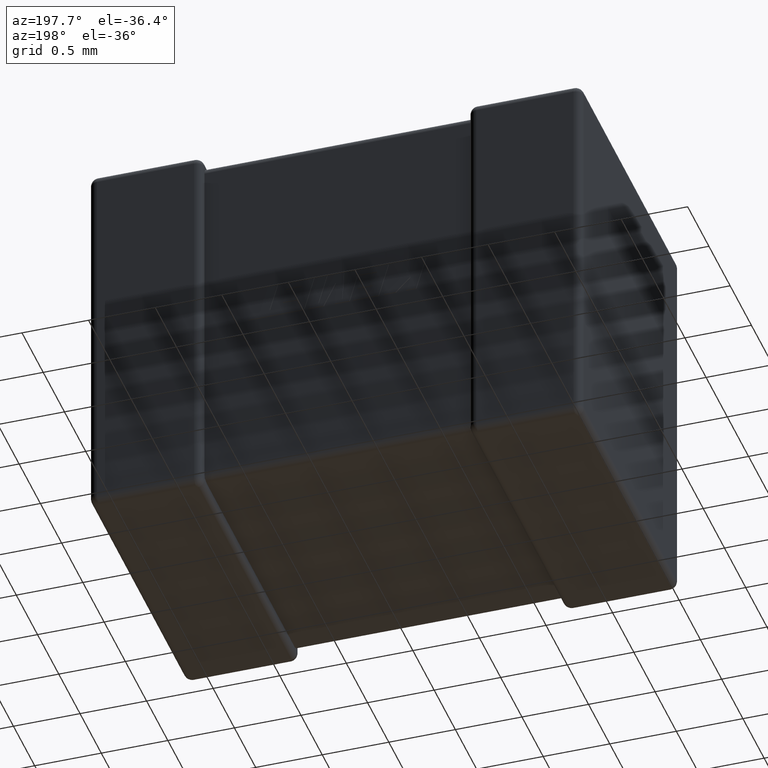
[diagram: clean part render]
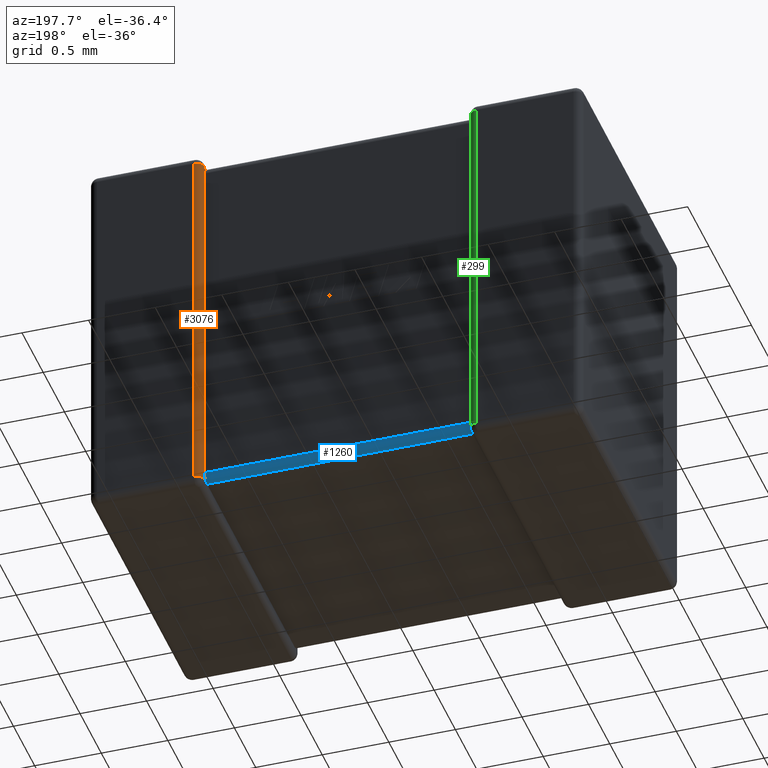
[diagram: same view with three faces highlighted in distinct colors, each labeled with its STEP entity id]
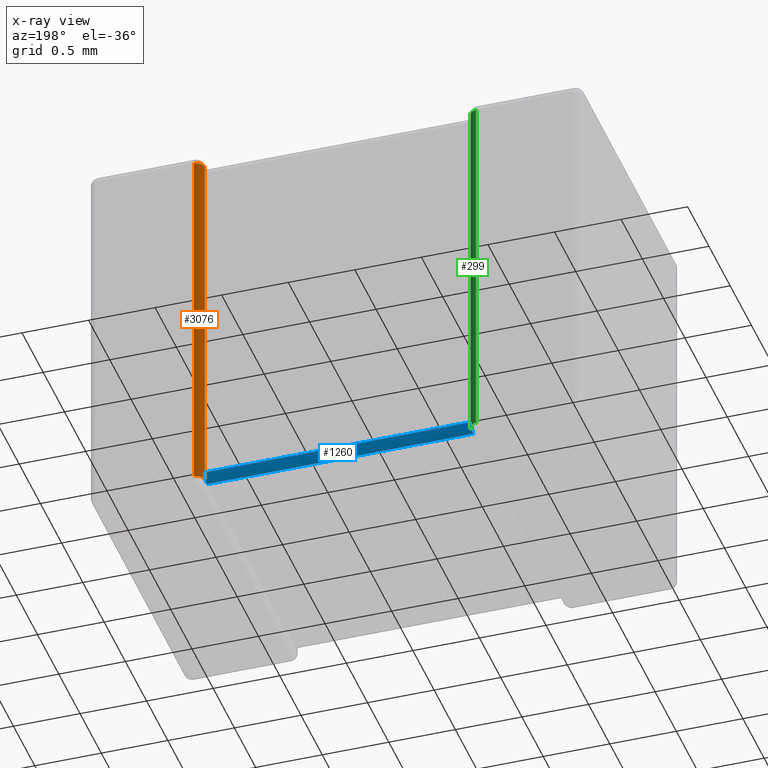
[diagram: x-ray of the same camera — body ghosted, the three highlighted faces saturated]
A machine part, auxiliary view with three faces highlighted in distinct colors.
The next image is the same camera in x-ray (body ghosted, the three faces saturated) — at least one of them is partly hidden behind the body in this view.
Their STEP definitions:

[orange] entity #3076 — the highlighted cylindrical surface (edge-blend (fillet) strip) has radius 0.0603 mm, axis along (-0, 0, 1).
#4 = CARTESIAN_POINT ( 'NONE',  ( 2.910319999999999600, 2.300000000000000300, -2.839680000000000000 ) ) ;
#22 = CARTESIAN_POINT ( 'NONE',  ( 2.851735349689732000, 2.225237134070047400, -0.08140490591499352500 ) ) ;
#93 = EDGE_CURVE ( 'NONE', #3233, #4604, #3706, .T. ) ;
#147 = CARTESIAN_POINT ( 'NONE',  ( 2.850888303420464200, 2.227748446505597400, -0.07225155349440265400 ) ) ;
#335 = CARTESIAN_POINT ( 'NONE',  ( 2.850046221982346100, 2.235956509717161600, -2.801154912733902200 ) ) ;
#420 = EDGE_CURVE ( 'NONE', #3344, #4087, #2266, .T. ) ;
#475 = DIRECTION ( 'NONE',  ( -1.000000000000000000, 0.0000000000000000000, 0.0000000000000000000 ) ) ;
#684 = CARTESIAN_POINT ( 'NONE',  ( 2.852139638876261900, 2.223663482224630600, -0.07963812014200406800 ) ) ;
#701 = CARTESIAN_POINT ( 'NONE',  ( 2.850214406735153400, 2.234142458734350400, -0.09452033661618955400 ) ) ;
#734 = VECTOR ( 'NONE', #4471, 1000.000000000000000 ) ;
#838 = EDGE_CURVE ( 'NONE', #1343, #2051, #1055, .T. ) ;
#849 = CARTESIAN_POINT ( 'NONE',  ( 2.849999999999999600, 2.239680000000000300, -0.06031999999999999200 ) ) ;
#888 = CARTESIAN_POINT ( 'NONE',  ( 2.849999999999999600, 2.239680000000000300, -0.06031999999999999200 ) ) ;
#931 = CIRCLE ( 'NONE', #3881, 0.06031999999999999200 ) ;
#936 =( BOUNDED_CURVE ( )  B_SPLINE_CURVE ( 3, ( #888, #1186, #147, #4132 ),
 .UNSPECIFIED., .F., .F. ) 
 B_SPLINE_CURVE_WITH_KNOTS ( ( 4, 4 ),
 ( 1.570796326794896600, 1.868047688116102800 ),
 .UNSPECIFIED. ) 
 CURVE ( )  GEOMETRIC_REPRESENTATION_ITEM ( )  RATIONAL_B_SPLINE_CURVE ( ( 1.000000000000000000, 0.9926503465430338600, 0.9926503465430338600, 1.000000000000000000 ) ) 
 REPRESENTATION_ITEM ( '' )  );
#952 = VERTEX_POINT ( 'NONE', #3484 ) ;
#996 = EDGE_LOOP ( 'NONE', ( #2377, #2673, #1351, #3971, #2800, #2948, #3554, #1106 ) ) ;
#1005 = CARTESIAN_POINT ( 'NONE',  ( 2.852645324094477400, 2.222012681041172700, -2.822012681041172300 ) ) ;
#1039 = CARTESIAN_POINT ( 'NONE',  ( 2.849999999999999600, 2.239680000000000300, -0.1139488874851640300 ) ) ;
#1052 = CARTESIAN_POINT ( 'NONE',  ( 2.852645324094476900, 2.222012681041172700, -0.07798731895882743400 ) ) ;
#1055 =( BOUNDED_CURVE ( )  B_SPLINE_CURVE ( 3, ( #2412, #1747, #3902, #2122 ),
 .UNSPECIFIED., .F., .F. ) 
 B_SPLINE_CURVE_WITH_KNOTS ( ( 4, 4 ),
 ( 1.570796326794896600, 1.868047688116105700 ),
 .UNSPECIFIED. ) 
 CURVE ( )  GEOMETRIC_REPRESENTATION_ITEM ( )  RATIONAL_B_SPLINE_CURVE ( ( 1.000000000000000000, 0.9926503465430336300, 0.9926503465430336300, 1.000000000000000000 ) ) 
 REPRESENTATION_ITEM ( '' )  );
#1073 = EDGE_CURVE ( 'NONE', #952, #3344, #3976, .T. ) ;
#1106 = ORIENTED_EDGE ( 'NONE', *, *, #1704, .F. ) ;
#1124 = CARTESIAN_POINT ( 'NONE',  ( 2.849999999999999600, 2.239680000000000300, -0.1206399999999999800 ) ) ;
#1186 = CARTESIAN_POINT ( 'NONE',  ( 2.849999999999999600, 2.233681156185414600, -0.06631884381458608100 ) ) ;
#1343 = VERTEX_POINT ( 'NONE', #3917 ) ;
#1351 = ORIENTED_EDGE ( 'NONE', *, *, #4517, .T. ) ;
#1445 = CARTESIAN_POINT ( 'NONE',  ( 2.910319999999999600, 2.239680000000000300, -0.06031999999999999900 ) ) ;
#1624 = CARTESIAN_POINT ( 'NONE',  ( 2.910319999999999600, 2.239680000000000300, -2.839680000000000000 ) ) ;
#1704 = EDGE_CURVE ( 'NONE', #3785, #3233, #3784, .T. ) ;
#1747 = CARTESIAN_POINT ( 'NONE',  ( 2.849999999999999600, 2.233681156185414200, -2.833681156185413800 ) ) ;
#1765 = CARTESIAN_POINT ( 'NONE',  ( 2.850092537798195800, 2.236340060370261900, -0.1008466900140133500 ) ) ;
#2051 = VERTEX_POINT ( 'NONE', #3414 ) ;
#2074 = DIRECTION ( 'NONE',  ( -0.0000000000000000000, 0.0000000000000000000, 1.000000000000000000 ) ) ;
#2113 = AXIS2_PLACEMENT_3D ( 'NONE', #1445, #2175, #2922 ) ;
#2122 = CARTESIAN_POINT ( 'NONE',  ( 2.852645324094477400, 2.222012681041172700, -2.822012681041172300 ) ) ;
#2125 = CARTESIAN_POINT ( 'NONE',  ( 2.850016594277841700, 2.237956393001884900, -2.795004313098003100 ) ) ;
#2141 = CARTESIAN_POINT ( 'NONE',  ( 2.850506385401006000, 2.230816194173637100, -0.08847155471007216200 ) ) ;
#2155 = CARTESIAN_POINT ( 'NONE',  ( 2.849999999999999600, 2.239680000000000300, -2.779359999999999600 ) ) ;
#2175 = DIRECTION ( 'NONE',  ( 1.123385871690053800E-016, -0.0000000000000000000, 1.000000000000000000 ) ) ;
#2241 = CARTESIAN_POINT ( 'NONE',  ( 2.910319999999999600, 2.300000000000000300, 0.0000000000000000000 ) ) ;
#2266 = B_SPLINE_CURVE_WITH_KNOTS ( 'NONE', 3,
 ( #3576, #1039, #4652, #1765, #701, #2141, #2862, #22, #684, #1052 ),
 .UNSPECIFIED., .F., .F.,
 ( 4, 3, 3, 4 ),
 ( 0.0000000000000000000, 2.007333754452009500E-005, 4.018812802268501200E-005, 4.726196897772585700E-005 ),
 .UNSPECIFIED. ) ;
#2377 = ORIENTED_EDGE ( 'NONE', *, *, #4534, .F. ) ;
#2412 = CARTESIAN_POINT ( 'NONE',  ( 2.849999999999999600, 2.239680000000000300, -2.839680000000000000 ) ) ;
#2431 = DIRECTION ( 'NONE',  ( 1.000000000000000000, 0.0000000000000000000, 0.0000000000000000000 ) ) ;
#2476 = CARTESIAN_POINT ( 'NONE',  ( 2.849999999999903300, 2.239680000000006100, -2.782507830900687700 ) ) ;
#2517 = AXIS2_PLACEMENT_3D ( 'NONE', #4233, #2074, #2431 ) ;
#2599 = EDGE_CURVE ( 'NONE', #4604, #4087, #936, .T. ) ;
#2673 = ORIENTED_EDGE ( 'NONE', *, *, #838, .T. ) ;
#2800 = ORIENTED_EDGE ( 'NONE', *, *, #420, .T. ) ;
#2862 = CARTESIAN_POINT ( 'NONE',  ( 2.851412288870488300, 2.226703715112483600, -0.08326253299984030800 ) ) ;
#2922 = DIRECTION ( 'NONE',  ( 1.000000000000000000, 0.0000000000000000000, -1.123385871690053500E-016 ) ) ;
#2948 = ORIENTED_EDGE ( 'NONE', *, *, #2599, .F. ) ;
#3010 = CARTESIAN_POINT ( 'NONE',  ( 2.849999999999999600, 2.239680000000000300, -2.899999999999999900 ) ) ;
#3037 = CARTESIAN_POINT ( 'NONE',  ( 2.910319999999999600, 2.300000000000000300, -0.06031999999999999900 ) ) ;
#3076 = ADVANCED_FACE ( 'NONE', ( #3698 ), #3090, .T. ) ;
#3090 = CYLINDRICAL_SURFACE ( 'NONE', #2517, 0.06031999999999999200 ) ;
#3233 = VERTEX_POINT ( 'NONE', #3037 ) ;
#3344 = VERTEX_POINT ( 'NONE', #1124 ) ;
#3414 = CARTESIAN_POINT ( 'NONE',  ( 2.852645324094477400, 2.222012681041172700, -2.822012681041172300 ) ) ;
#3484 = CARTESIAN_POINT ( 'NONE',  ( 2.849999999999999600, 2.239680000000000300, -2.779359999999999600 ) ) ;
#3554 = ORIENTED_EDGE ( 'NONE', *, *, #93, .F. ) ;
#3576 = CARTESIAN_POINT ( 'NONE',  ( 2.849999999999999600, 2.239680000000000300, -0.1206399999999999800 ) ) ;
#3690 = DIRECTION ( 'NONE',  ( -0.0000000000000000000, 0.0000000000000000000, 1.000000000000000000 ) ) ;
#3698 = FACE_OUTER_BOUND ( 'NONE', #996, .T. ) ;
#3706 = CIRCLE ( 'NONE', #2113, 0.06031999999999999200 ) ;
#3730 = DIRECTION ( 'NONE',  ( 0.0000000000000000000, 0.0000000000000000000, -1.000000000000000000 ) ) ;
#3784 = LINE ( 'NONE', #2241, #4133 ) ;
#3785 = VERTEX_POINT ( 'NONE', #4 ) ;
#3881 = AXIS2_PLACEMENT_3D ( 'NONE', #1624, #3730, #475 ) ;
#3902 = CARTESIAN_POINT ( 'NONE',  ( 2.850888303420464200, 2.227748446505597400, -2.827748446505597500 ) ) ;
#3917 = CARTESIAN_POINT ( 'NONE',  ( 2.849999999999999600, 2.239680000000000300, -2.839680000000000000 ) ) ;
#3921 = CARTESIAN_POINT ( 'NONE',  ( 2.850360574411527900, 2.233094433729698300, -2.806766441428042200 ) ) ;
#3971 = ORIENTED_EDGE ( 'NONE', *, *, #1073, .T. ) ;
#3976 = LINE ( 'NONE', #3010, #734 ) ;
#4087 = VERTEX_POINT ( 'NONE', #4172 ) ;
#4132 = CARTESIAN_POINT ( 'NONE',  ( 2.852645324094476900, 2.222012681041172700, -0.07798731895882743400 ) ) ;
#4133 = VECTOR ( 'NONE', #3690, 1000.000000000000000 ) ;
#4172 = CARTESIAN_POINT ( 'NONE',  ( 2.852645324094476900, 2.222012681041172700, -0.07798731895882743400 ) ) ;
#4233 = CARTESIAN_POINT ( 'NONE',  ( 2.910319999999999600, 2.239680000000000300, 0.0000000000000000000 ) ) ;
#4254 = CARTESIAN_POINT ( 'NONE',  ( 2.849998508405196000, 2.239432080224852900, -2.785665266099205200 ) ) ;
#4289 = CARTESIAN_POINT ( 'NONE',  ( 2.851305556941119400, 2.226386329161687000, -2.817639032920658400 ) ) ;
#4319 = CARTESIAN_POINT ( 'NONE',  ( 2.850676003751899700, 2.230222552818298600, -2.812397194144273400 ) ) ;
#4350 = B_SPLINE_CURVE_WITH_KNOTS ( 'NONE', 3,
 ( #1005, #4289, #4319, #3921, #335, #2125, #4651, #4254, #2476, #2155 ),
 .UNSPECIFIED., .F., .F.,
 ( 4, 3, 3, 4 ),
 ( 0.0000000000000000000, 1.898613036151298400E-005, 3.787211996365356600E-005, 4.720870273682601900E-005 ),
 .UNSPECIFIED. ) ;
#4471 = DIRECTION ( 'NONE',  ( -0.0000000000000000000, -0.0000000000000000000, 1.000000000000000000 ) ) ;
#4517 = EDGE_CURVE ( 'NONE', #2051, #952, #4350, .T. ) ;
#4534 = EDGE_CURVE ( 'NONE', #1343, #3785, #931, .T. ) ;
#4604 = VERTEX_POINT ( 'NONE', #849 ) ;
#4651 = CARTESIAN_POINT ( 'NONE',  ( 2.850004529734188300, 2.238940779725668400, -2.788774514713004700 ) ) ;
#4652 = CARTESIAN_POINT ( 'NONE',  ( 2.849970799398986900, 2.238535308084198300, -0.1071662670507152700 ) ) ;

[blue] entity #1260 — the highlighted cylindrical surface (edge-blend (fillet) strip) has radius 0.0603 mm, axis along (1, 0, 0).
#36 = EDGE_CURVE ( 'NONE', #2219, #2882, #3667, .T. ) ;
#84 = CYLINDRICAL_SURFACE ( 'NONE', #3137, 0.06031999999999999200 ) ;
#244 = CARTESIAN_POINT ( 'NONE',  ( 0.8500000000000000900, 2.179360000000000400, -2.779359999999999600 ) ) ;
#307 = VECTOR ( 'NONE', #3393, 1000.000000000000000 ) ;
#322 = DIRECTION ( 'NONE',  ( 0.0000000000000000000, 0.0000000000000000000, -1.000000000000000000 ) ) ;
#335 = CARTESIAN_POINT ( 'NONE',  ( 2.850046221982346100, 2.235956509717161600, -2.801154912733902200 ) ) ;
#350 = FACE_OUTER_BOUND ( 'NONE', #1453, .T. ) ;
#364 = CARTESIAN_POINT ( 'NONE',  ( 0.8473546759055223800, 2.222012681041172700, -2.822012681041172300 ) ) ;
#379 = CARTESIAN_POINT ( 'NONE',  ( 0.8500000000000957900, 2.182507830900688000, -2.839680000000005300 ) ) ;
#431 = CARTESIAN_POINT ( 'NONE',  ( 2.849999999999999600, 2.179360000000000400, -2.839680000000000000 ) ) ;
#516 = EDGE_CURVE ( 'NONE', #2882, #622, #1498, .T. ) ;
#555 = CARTESIAN_POINT ( 'NONE',  ( 0.8499999999999998700, 2.239680000000000300, -2.786051112514835700 ) ) ;
#577 = EDGE_CURVE ( 'NONE', #622, #2051, #1198, .T. ) ;
#622 = VERTEX_POINT ( 'NONE', #3333 ) ;
#628 = LINE ( 'NONE', #1265, #307 ) ;
#771 = CARTESIAN_POINT ( 'NONE',  ( 2.849999999999999600, 2.186051112514836500, -2.839680000000000000 ) ) ;
#952 = VERTEX_POINT ( 'NONE', #3484 ) ;
#963 = ORIENTED_EDGE ( 'NONE', *, *, #2142, .F. ) ;
#1005 = CARTESIAN_POINT ( 'NONE',  ( 2.852645324094477400, 2.222012681041172700, -2.822012681041172300 ) ) ;
#1024 = B_SPLINE_CURVE_WITH_KNOTS ( 'NONE', 3,
 ( #2382, #555, #3515, #4569, #3108, #3092, #4206, #3486, #1281, #1684 ),
 .UNSPECIFIED., .F., .F.,
 ( 4, 3, 3, 4 ),
 ( 0.0000000000000000000, 2.007333754452009800E-005, 4.018812802268499800E-005, 4.726196897772579600E-005 ),
 .UNSPECIFIED. ) ;
#1046 = CARTESIAN_POINT ( 'NONE',  ( 0.8499999999999998700, 2.239680000000000300, -2.779359999999999600 ) ) ;
#1133 = CARTESIAN_POINT ( 'NONE',  ( 2.849970799398986900, 2.192833732949285100, -2.838535308084197500 ) ) ;
#1198 = B_SPLINE_CURVE_WITH_KNOTS ( 'NONE', 3,
 ( #431, #771, #1133, #2918, #1831, #3663, #4363, #1508, #2197, #4405 ),
 .UNSPECIFIED., .F., .F.,
 ( 4, 3, 3, 4 ),
 ( 0.0000000000000000000, 2.007333754452011800E-005, 4.018812802268505200E-005, 4.726196897772578900E-005 ),
 .UNSPECIFIED. ) ;
#1260 = ADVANCED_FACE ( 'NONE', ( #350 ), #84, .T. ) ;
#1265 = CARTESIAN_POINT ( 'NONE',  ( 0.8499999999999998700, 2.239680000000000300, -2.779359999999999600 ) ) ;
#1281 = CARTESIAN_POINT ( 'NONE',  ( 0.8478603611237374200, 2.223663482224630600, -2.820361879857995900 ) ) ;
#1453 = EDGE_LOOP ( 'NONE', ( #4024, #963, #1860, #4158, #1838, #3910 ) ) ;
#1487 = CARTESIAN_POINT ( 'NONE',  ( 0.8500000000000000900, 2.179360000000000400, -2.839680000000000000 ) ) ;
#1498 = LINE ( 'NONE', #1487, #2249 ) ;
#1508 = CARTESIAN_POINT ( 'NONE',  ( 2.851735349689732000, 2.218595094085007000, -2.825237134070046600 ) ) ;
#1544 = VERTEX_POINT ( 'NONE', #1046 ) ;
#1684 = CARTESIAN_POINT ( 'NONE',  ( 0.8473546759055223800, 2.222012681041172700, -2.822012681041172300 ) ) ;
#1831 = CARTESIAN_POINT ( 'NONE',  ( 2.850214406735153400, 2.205479663383811000, -2.834142458734350000 ) ) ;
#1838 = ORIENTED_EDGE ( 'NONE', *, *, #516, .F. ) ;
#1860 = ORIENTED_EDGE ( 'NONE', *, *, #4517, .F. ) ;
#2051 = VERTEX_POINT ( 'NONE', #3414 ) ;
#2125 = CARTESIAN_POINT ( 'NONE',  ( 2.850016594277841700, 2.237956393001884900, -2.795004313098003100 ) ) ;
#2142 = EDGE_CURVE ( 'NONE', #952, #1544, #628, .T. ) ;
#2155 = CARTESIAN_POINT ( 'NONE',  ( 2.849999999999999600, 2.239680000000000300, -2.779359999999999600 ) ) ;
#2197 = CARTESIAN_POINT ( 'NONE',  ( 2.852139638876261900, 2.220361879857996300, -2.823663482224630300 ) ) ;
#2216 = CARTESIAN_POINT ( 'NONE',  ( 0.8499537780176531500, 2.201154912733902100, -2.835956509717160800 ) ) ;
#2219 = VERTEX_POINT ( 'NONE', #4577 ) ;
#2235 = CARTESIAN_POINT ( 'NONE',  ( 0.8493239962480996200, 2.212397194144273700, -2.830222552818297800 ) ) ;
#2249 = VECTOR ( 'NONE', #4391, 1000.000000000000000 ) ;
#2382 = CARTESIAN_POINT ( 'NONE',  ( 0.8499999999999998700, 2.239680000000000300, -2.779359999999999600 ) ) ;
#2476 = CARTESIAN_POINT ( 'NONE',  ( 2.849999999999903300, 2.239680000000006100, -2.782507830900687700 ) ) ;
#2534 = CARTESIAN_POINT ( 'NONE',  ( 0.8499954702658114600, 2.188774514713005100, -2.838940779725668100 ) ) ;
#2762 = DIRECTION ( 'NONE',  ( 1.000000000000000000, 0.0000000000000000000, 0.0000000000000000000 ) ) ;
#2882 = VERTEX_POINT ( 'NONE', #3240 ) ;
#2893 = CARTESIAN_POINT ( 'NONE',  ( 0.8500014915948035400, 2.185665266099205500, -2.839432080224852100 ) ) ;
#2918 = CARTESIAN_POINT ( 'NONE',  ( 2.850092537798195800, 2.199153309985987000, -2.836340060370261500 ) ) ;
#2936 = CARTESIAN_POINT ( 'NONE',  ( 0.8500000000000000900, 2.179360000000000400, -2.839680000000000000 ) ) ;
#3092 = CARTESIAN_POINT ( 'NONE',  ( 0.8494936145989937500, 2.230816194173637100, -2.811528445289928100 ) ) ;
#3108 = CARTESIAN_POINT ( 'NONE',  ( 0.8497855932648464800, 2.234142458734350400, -2.805479663383810200 ) ) ;
#3137 = AXIS2_PLACEMENT_3D ( 'NONE', #244, #2762, #322 ) ;
#3240 = CARTESIAN_POINT ( 'NONE',  ( 0.8500000000000000900, 2.179360000000000400, -2.839680000000000000 ) ) ;
#3266 = CARTESIAN_POINT ( 'NONE',  ( 0.8486944430588806400, 2.217639032920658800, -2.826386329161686200 ) ) ;
#3333 = CARTESIAN_POINT ( 'NONE',  ( 2.849999999999999600, 2.179360000000000400, -2.839680000000000000 ) ) ;
#3393 = DIRECTION ( 'NONE',  ( -1.000000000000000000, -0.0000000000000000000, -0.0000000000000000000 ) ) ;
#3414 = CARTESIAN_POINT ( 'NONE',  ( 2.852645324094477400, 2.222012681041172700, -2.822012681041172300 ) ) ;
#3484 = CARTESIAN_POINT ( 'NONE',  ( 2.849999999999999600, 2.239680000000000300, -2.779359999999999600 ) ) ;
#3486 = CARTESIAN_POINT ( 'NONE',  ( 0.8482646503102677600, 2.225237134070047400, -2.818595094085006200 ) ) ;
#3515 = CARTESIAN_POINT ( 'NONE',  ( 0.8500292006010126100, 2.238535308084198300, -2.792833732949284300 ) ) ;
#3618 = CARTESIAN_POINT ( 'NONE',  ( 0.8499834057221579100, 2.195004313098003000, -2.837956393001884500 ) ) ;
#3663 = CARTESIAN_POINT ( 'NONE',  ( 2.850506385401006000, 2.211528445289928400, -2.830816194173636700 ) ) ;
#3667 = B_SPLINE_CURVE_WITH_KNOTS ( 'NONE', 3,
 ( #364, #3266, #2235, #4381, #2216, #3618, #2534, #2893, #379, #2936 ),
 .UNSPECIFIED., .F., .F.,
 ( 4, 3, 3, 4 ),
 ( 0.0000000000000000000, 1.898613036151329200E-005, 3.787211996365389200E-005, 4.720870273682590300E-005 ),
 .UNSPECIFIED. ) ;
#3910 = ORIENTED_EDGE ( 'NONE', *, *, #36, .F. ) ;
#3921 = CARTESIAN_POINT ( 'NONE',  ( 2.850360574411527900, 2.233094433729698300, -2.806766441428042200 ) ) ;
#4024 = ORIENTED_EDGE ( 'NONE', *, *, #4312, .F. ) ;
#4158 = ORIENTED_EDGE ( 'NONE', *, *, #577, .F. ) ;
#4206 = CARTESIAN_POINT ( 'NONE',  ( 0.8485877111295117000, 2.226703715112483600, -2.816737467000159700 ) ) ;
#4254 = CARTESIAN_POINT ( 'NONE',  ( 2.849998508405196000, 2.239432080224852900, -2.785665266099205200 ) ) ;
#4289 = CARTESIAN_POINT ( 'NONE',  ( 2.851305556941119400, 2.226386329161687000, -2.817639032920658400 ) ) ;
#4312 = EDGE_CURVE ( 'NONE', #1544, #2219, #1024, .T. ) ;
#4319 = CARTESIAN_POINT ( 'NONE',  ( 2.850676003751899700, 2.230222552818298600, -2.812397194144273400 ) ) ;
#4350 = B_SPLINE_CURVE_WITH_KNOTS ( 'NONE', 3,
 ( #1005, #4289, #4319, #3921, #335, #2125, #4651, #4254, #2476, #2155 ),
 .UNSPECIFIED., .F., .F.,
 ( 4, 3, 3, 4 ),
 ( 0.0000000000000000000, 1.898613036151298400E-005, 3.787211996365356600E-005, 4.720870273682601900E-005 ),
 .UNSPECIFIED. ) ;
#4363 = CARTESIAN_POINT ( 'NONE',  ( 2.851412288870488300, 2.216737467000160100, -2.826703715112483200 ) ) ;
#4381 = CARTESIAN_POINT ( 'NONE',  ( 0.8496394255884713900, 2.206766441428042100, -2.833094433729697500 ) ) ;
#4391 = DIRECTION ( 'NONE',  ( 1.000000000000000000, 0.0000000000000000000, 0.0000000000000000000 ) ) ;
#4405 = CARTESIAN_POINT ( 'NONE',  ( 2.852645324094477400, 2.222012681041172700, -2.822012681041172300 ) ) ;
#4517 = EDGE_CURVE ( 'NONE', #2051, #952, #4350, .T. ) ;
#4569 = CARTESIAN_POINT ( 'NONE',  ( 0.8499074622018036900, 2.236340060370261900, -2.799153309985986700 ) ) ;
#4577 = CARTESIAN_POINT ( 'NONE',  ( 0.8473546759055223800, 2.222012681041172700, -2.822012681041172300 ) ) ;
#4651 = CARTESIAN_POINT ( 'NONE',  ( 2.850004529734188300, 2.238940779725668400, -2.788774514713004700 ) ) ;

[green] entity #299 — the highlighted cylindrical surface (edge-blend (fillet) strip) has radius 0.0603 mm, axis along (0, 0, 1).
#246 = CARTESIAN_POINT ( 'NONE',  ( 0.7896799999999998300, 2.239680000000000300, -2.899999999999999900 ) ) ;
#265 = EDGE_CURVE ( 'NONE', #1544, #4130, #2871, .T. ) ;
#281 = DIRECTION ( 'NONE',  ( 0.0000000000000000000, 0.0000000000000000000, 1.000000000000000000 ) ) ;
#287 = CARTESIAN_POINT ( 'NONE',  ( 0.8499999999999998700, 2.239680000000000300, -2.899999999999999900 ) ) ;
#299 = ADVANCED_FACE ( 'NONE', ( #430 ), #377, .T. ) ;
#371 = EDGE_CURVE ( 'NONE', #4535, #1126, #2920, .T. ) ;
#377 = CYLINDRICAL_SURFACE ( 'NONE', #3871, 0.06031999999999999200 ) ;
#430 = FACE_OUTER_BOUND ( 'NONE', #4380, .T. ) ;
#434 = AXIS2_PLACEMENT_3D ( 'NONE', #3943, #2110, #4295 ) ;
#674 = AXIS2_PLACEMENT_3D ( 'NONE', #3901, #986, #3514 ) ;
#681 = VECTOR ( 'NONE', #3143, 1000.000000000000000 ) ;
#770 = ORIENTED_EDGE ( 'NONE', *, *, #902, .F. ) ;
#902 = EDGE_CURVE ( 'NONE', #4130, #4535, #1421, .T. ) ;
#962 = DIRECTION ( 'NONE',  ( -0.0000000000000000000, -0.0000000000000000000, 1.000000000000000000 ) ) ;
#986 = DIRECTION ( 'NONE',  ( 0.0000000000000000000, 0.0000000000000000000, -1.000000000000000000 ) ) ;
#1046 = CARTESIAN_POINT ( 'NONE',  ( 0.8499999999999998700, 2.239680000000000300, -2.779359999999999600 ) ) ;
#1126 = VERTEX_POINT ( 'NONE', #4079 ) ;
#1306 = ORIENTED_EDGE ( 'NONE', *, *, #1348, .F. ) ;
#1322 = EDGE_CURVE ( 'NONE', #3922, #4478, #3116, .T. ) ;
#1348 = EDGE_CURVE ( 'NONE', #4478, #1544, #3562, .T. ) ;
#1421 = LINE ( 'NONE', #287, #681 ) ;
#1544 = VERTEX_POINT ( 'NONE', #1046 ) ;
#1571 = ORIENTED_EDGE ( 'NONE', *, *, #1322, .F. ) ;
#2037 = ORIENTED_EDGE ( 'NONE', *, *, #265, .F. ) ;
#2110 = DIRECTION ( 'NONE',  ( 8.076773226962117700E-031, 1.123385871690061900E-016, 1.000000000000000000 ) ) ;
#2137 = CARTESIAN_POINT ( 'NONE',  ( 0.7896799999999996000, 2.300000000000000300, 0.0000000000000000000 ) ) ;
#2151 = DIRECTION ( 'NONE',  ( 0.0000000000000000000, 0.0000000000000000000, 1.000000000000000000 ) ) ;
#2396 = ORIENTED_EDGE ( 'NONE', *, *, #371, .F. ) ;
#2685 = DIRECTION ( 'NONE',  ( 1.000000000000000000, 0.0000000000000000000, 0.0000000000000000000 ) ) ;
#2827 = DIRECTION ( 'NONE',  ( -0.0000000000000000000, -0.0000000000000000000, -1.000000000000000000 ) ) ;
#2871 = LINE ( 'NONE', #3521, #4571 ) ;
#2890 = VECTOR ( 'NONE', #2151, 1000.000000000000000 ) ;
#2920 = CIRCLE ( 'NONE', #434, 0.06031999999999999200 ) ;
#3072 = ORIENTED_EDGE ( 'NONE', *, *, #3695, .F. ) ;
#3116 = CIRCLE ( 'NONE', #674, 0.06031999999999999200 ) ;
#3143 = DIRECTION ( 'NONE',  ( 0.0000000000000000000, 0.0000000000000000000, 1.000000000000000000 ) ) ;
#3194 = CARTESIAN_POINT ( 'NONE',  ( 0.8499999999999998700, 2.239680000000000300, -2.839680000000000000 ) ) ;
#3337 = CARTESIAN_POINT ( 'NONE',  ( 0.8500000000000000900, 2.239680000000000300, -0.06031999999999999200 ) ) ;
#3478 = VECTOR ( 'NONE', #2827, 1000.000000000000000 ) ;
#3514 = DIRECTION ( 'NONE',  ( -1.000000000000000000, 0.0000000000000000000, 0.0000000000000000000 ) ) ;
#3521 = CARTESIAN_POINT ( 'NONE',  ( 0.8499999999999998700, 2.239680000000000300, -2.899999999999999900 ) ) ;
#3562 = LINE ( 'NONE', #4315, #2890 ) ;
#3695 = EDGE_CURVE ( 'NONE', #1126, #3922, #3816, .T. ) ;
#3707 = CARTESIAN_POINT ( 'NONE',  ( 0.7896799999999998300, 2.300000000000000300, -2.839680000000000000 ) ) ;
#3816 = LINE ( 'NONE', #2137, #3478 ) ;
#3870 = CARTESIAN_POINT ( 'NONE',  ( 0.8499999999999998700, 2.239680000000000300, -0.1206399999999999800 ) ) ;
#3871 = AXIS2_PLACEMENT_3D ( 'NONE', #246, #281, #2685 ) ;
#3901 = CARTESIAN_POINT ( 'NONE',  ( 0.7896799999999998300, 2.239680000000000300, -2.839680000000000000 ) ) ;
#3922 = VERTEX_POINT ( 'NONE', #3707 ) ;
#3943 = CARTESIAN_POINT ( 'NONE',  ( 0.7896799999999998300, 2.239680000000000800, -0.06031999999999999200 ) ) ;
#4079 = CARTESIAN_POINT ( 'NONE',  ( 0.7896799999999998300, 2.300000000000000300, -0.06031999999999999900 ) ) ;
#4130 = VERTEX_POINT ( 'NONE', #3870 ) ;
#4295 = DIRECTION ( 'NONE',  ( 0.0000000000000000000, -1.000000000000000000, 1.123385871690053500E-016 ) ) ;
#4315 = CARTESIAN_POINT ( 'NONE',  ( 0.8499999999999998700, 2.239680000000000300, -2.899999999999999900 ) ) ;
#4380 = EDGE_LOOP ( 'NONE', ( #1306, #1571, #3072, #2396, #770, #2037 ) ) ;
#4478 = VERTEX_POINT ( 'NONE', #3194 ) ;
#4535 = VERTEX_POINT ( 'NONE', #3337 ) ;
#4571 = VECTOR ( 'NONE', #962, 1000.000000000000000 ) ;